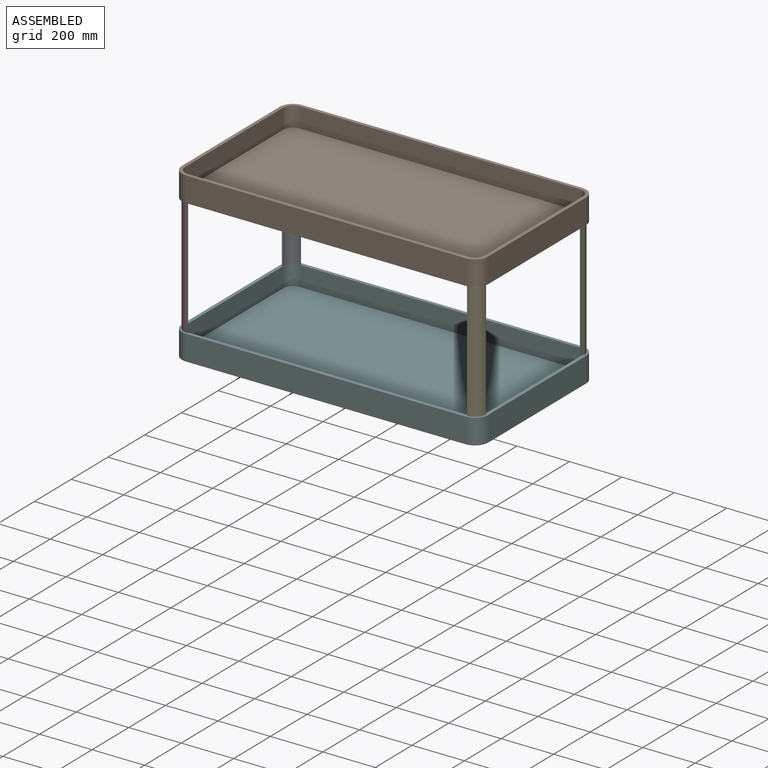
[diagram: assembled view]
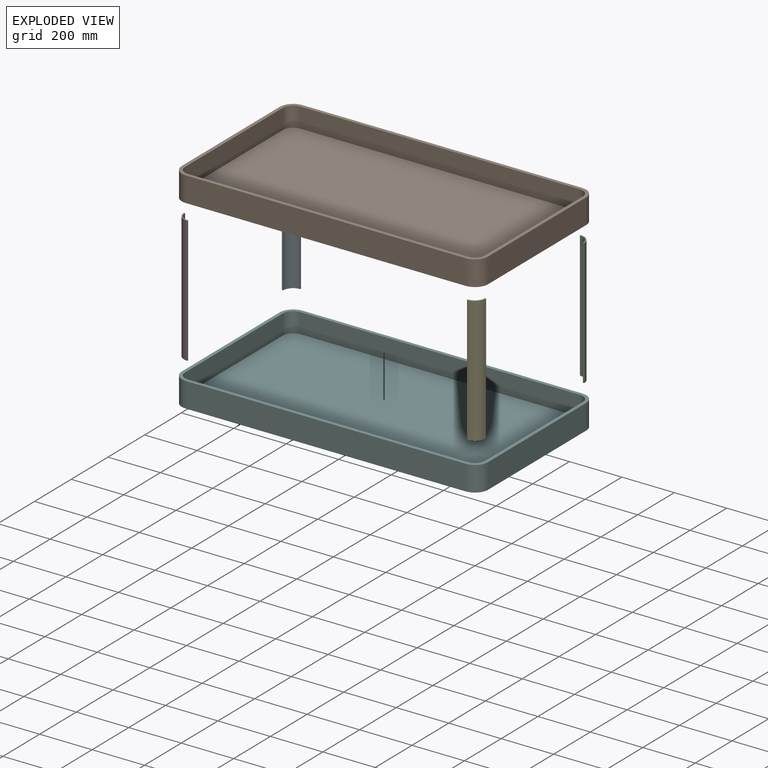
[diagram: exploded view]
GUIDED TOUR — MATED ASSEMBLY (Onshape document f4ed0492253b670b703076cc, AutoMate assembly f4ed0492253b670b703076cc_8603d2fc000435908a895415_7fc6d5df2742171a28bd1c1e_default)

This assembly has 6 components, labeled P0..P5 below (a component is one placed occurrence of a part; the same part can appear more than once), held together by 5 mates. A mate is a constraint between two components; its type names the relative motion it leaves free:
  FASTENED — locks the two components together rigidly (no relative motion).
Axis/direction vectors are unit vectors and 'through' points are millimeter coordinates, both in the assembly's world frame.

MATES
  1. FASTENED "Fastened 5": P2 <-> P1, direction (0.000, 0.000, -1.000) through (433.27, 428.59, 50.15) mm
  2. FASTENED "Fastened 4": P4 <-> P1, direction (0.000, 0.000, -1.000) through (433.27, -104.81, 304.15) mm
  3. FASTENED "Fastened 3": P3 <-> P1, direction (0.000, 0.000, -1.000) through (-633.53, -104.81, 50.15) mm
  4. FASTENED "Fastened 1": P0 <-> P1, direction (0.000, 0.000, -1.000) through (-633.53, 428.59, 304.15) mm
  5. FASTENED "Fastened 2": P5 <-> P0, direction (0.000, 0.000, -1.000) through (-633.53, 428.59, -216.55) mm

ASSEMBLY ORDER
  1. P5 — the base component [order verified]
  2. P1 [order verified]
  3. P4 [order verified]
  4. P0 [order verified]
  5. P3 [order verified]
  6. P2 [order verified]
Order-tag legend:
  [order verified] — this step's position reverses a verified removal order: the component was checked to insert without passing through the ones already placed.

Of the 6 components, 6 carry the full construction recipe — the FeatureScript program that regenerates the part's solid from scratch; the rest are supplied as boundary geometry only.
Each toured component is shown spotlighted twice — in the assembled view, then in the exploded view, where a leader line traces a displaced component back to its assembled socket (saturated green if recipe-attached, orange if geometry-only; every other component desaturated gray) — followed by its recipe or geometry summary and the mates that hold it.
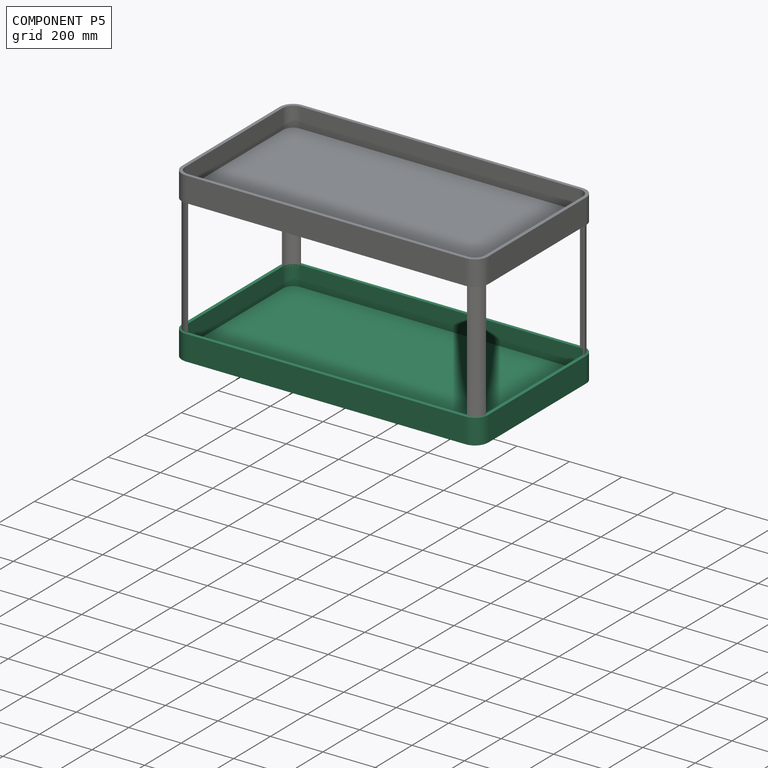
[diagram: component P5 — assembled]
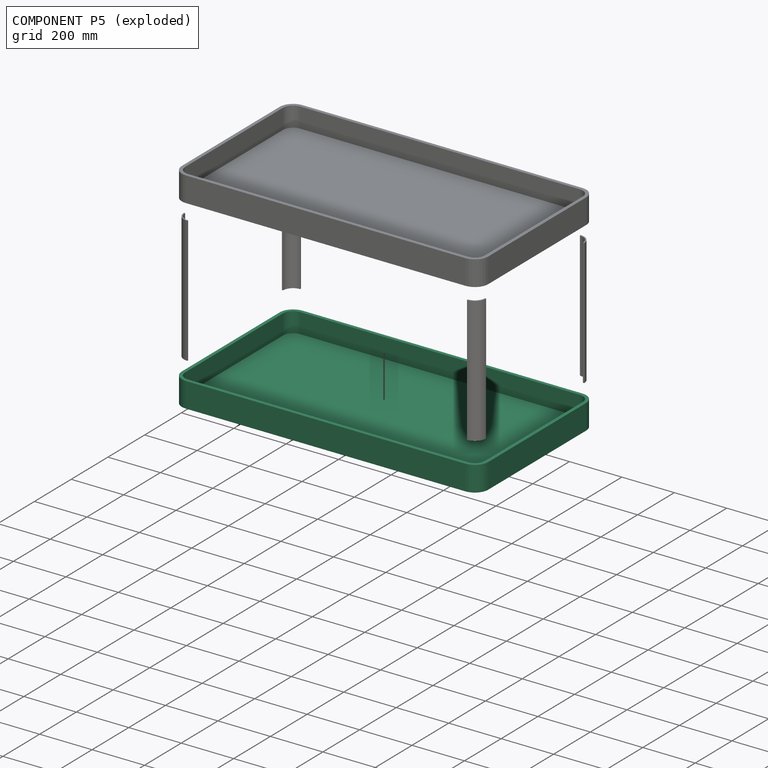
[diagram: component P5 — exploded]
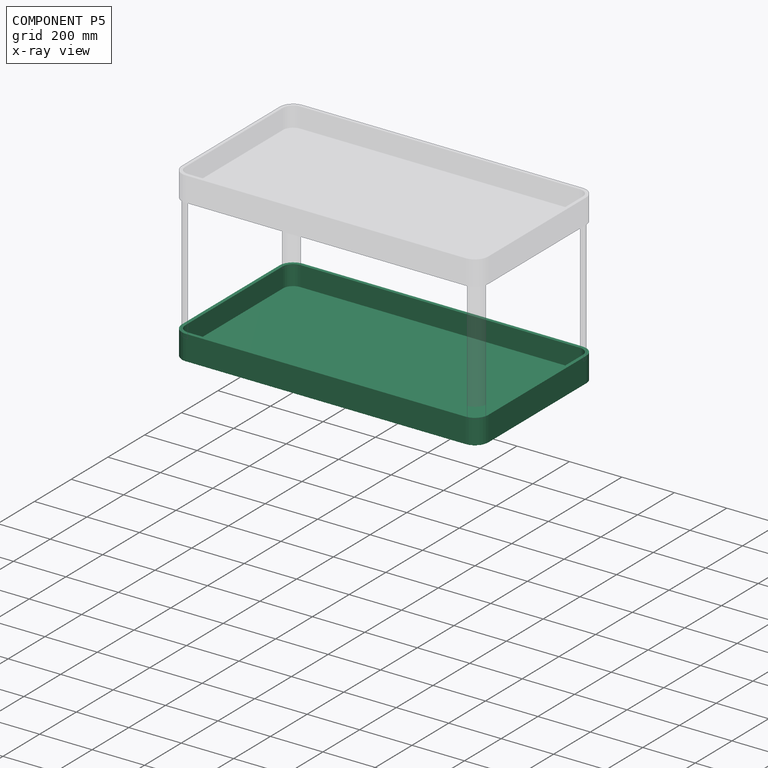
[diagram: component P5 — x-ray view]
COMPONENT P5 — same part as P1 (CADFS 00291228); its construction recipe is shown at P1.
Held by: FASTENED mate "Fastened 2" to P0.
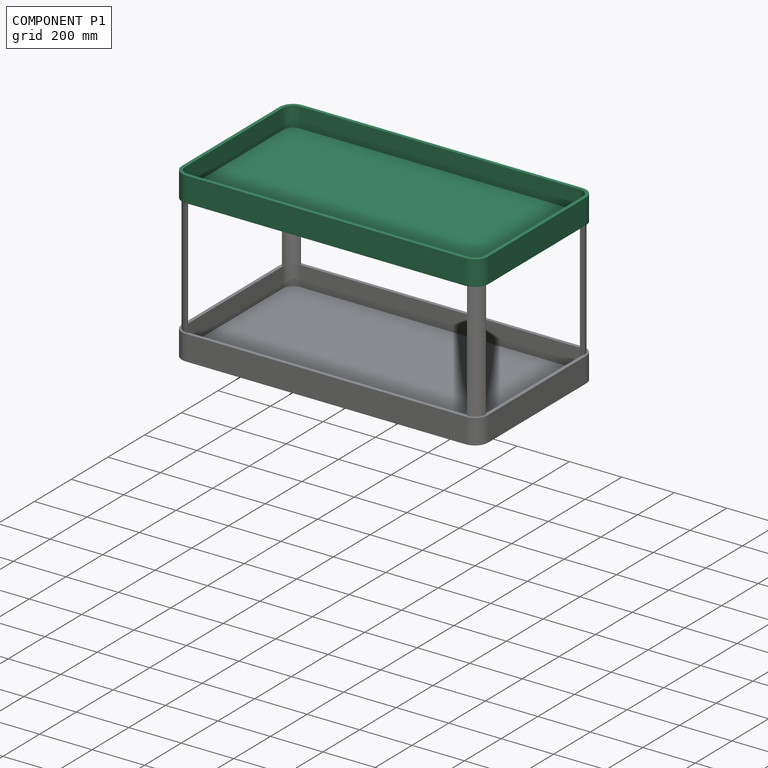
[diagram: component P1 — assembled]
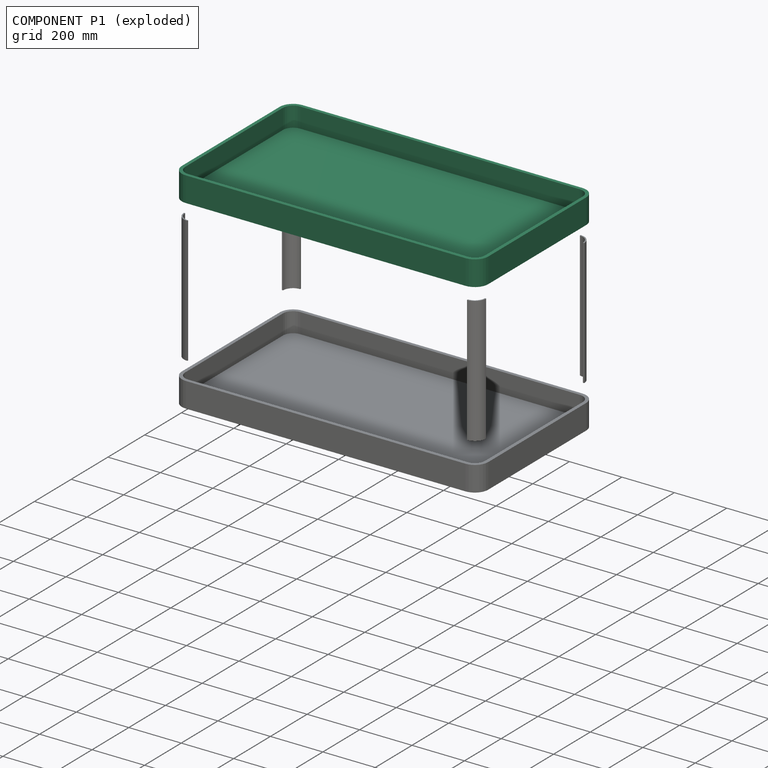
[diagram: component P1 — exploded]
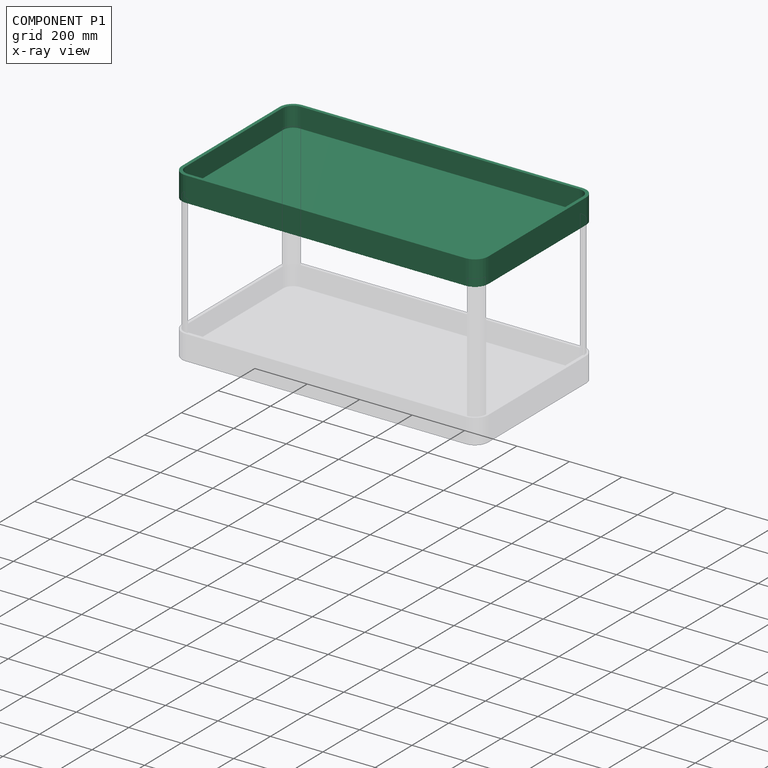
[diagram: component P1 — x-ray view]
COMPONENT P1 — recipe-attached (CADFS 00291228, mesh-verified: the recipe's output STEP matches this component's geometry to below the mesh-comparison resolution (tessellation chordal tolerance ~2 mm)).
Held by: FASTENED mate "Fastened 5" to P2; FASTENED mate "Fastened 4" to P4; FASTENED mate "Fastened 3" to P3; FASTENED mate "Fastened 1" to P0.
Construction recipe (FeatureScript — the CAD program that rebuilds this solid; sketch coordinates are in the units given by the * unit suffixes, e.g. mm):

FeatureScript 1511;
import(path : "onshape/std/geometry.fs", version : "1511.0");
import(path : "onshape/std/common.fs", version : "1511.0");
const mm = millimeter;
const VERTEX = EntityType.VERTEX;
const EDGE = EntityType.EDGE;
const FACE = EntityType.FACE;
const BODY = EntityType.BODY;
function v(x, y){return vector(x, y);}
function OD(order){return orderDisambiguation(order);}
function OSD(set){return originalSetDisambiguation(set);}
function TD(topology){return topologyDisambiguation(topology);}
function TDD(query){return trueDependencyDisambiguation(query);}
function sQuery(a, b, c) {return sketchEntityQuery(a, b, c);}

annotation { "Feature Type Name" : "Feature", "Feature Type Description" : "" }
export const myFeature = defineFeature(function(context is Context, id is Id, definition is map)
    precondition{}
    {
        {
            var Q0;
            Q0=qCreatedBy(makeId("Top.planeOp"),FACE);
            var sketch = newSketch(context, id + "F0", { "sketchPlane" : qUnion([Q0])});
            skLineSegment(sketch, "E0.bottom", {"start": v(-533.4, 317.5) * mm, "end": v(533.4, 317.5) * mm});
            skLineSegment(sketch, "E0.top", {"start": v(-533.4, -317.5) * mm, "end": v(533.4, -317.5) * mm});
            skLineSegment(sketch, "E0.left", {"start": v(-584.2, 266.7) * mm, "end": v(-584.2, -266.7) * mm});
            skLineSegment(sketch, "E0.right", {"start": v(584.2, 266.7) * mm, "end": v(584.2, -266.7) * mm});
            skPoint(sketch, "E1.visualSharp", {"position": v(-584.2, 317.5) * mm});
            skArc(sketch, "E1.filletArc", {"start": v(-533.4, 317.5) * mm, "mid": v(-569.32, 302.62) * mm, "end": v(-584.2, 266.7) * mm});
            skPoint(sketch, "E2.visualSharp", {"position": v(584.2, 317.5) * mm});
            skArc(sketch, "E2.filletArc", {"start": v(584.2, 266.7) * mm, "mid": v(569.32, 302.62) * mm, "end": v(533.4, 317.5) * mm});
            skPoint(sketch, "E3.visualSharp", {"position": v(584.2, -317.5) * mm});
            skArc(sketch, "E3.filletArc", {"start": v(533.4, -317.5) * mm, "mid": v(569.32, -302.62) * mm, "end": v(584.2, -266.7) * mm});
            skPoint(sketch, "E4.visualSharp", {"position": v(-584.2, -317.5) * mm});
            skArc(sketch, "E4.filletArc", {"start": v(-584.2, -266.7) * mm, "mid": v(-569.32, -302.62) * mm, "end": v(-533.4, -317.5) * mm});
            skSolve(sketch);
        }
        {
            var Q0;
            Q0 = qSketchRegion(id + "F0", true);
            extrude(context, id + "F1", {"entities" : qUnion([Q0]), "depth" : 19.05 * mm});
        }
        {
            var Q0;
            Q0=makeQuery(id+"F1.opExtrude","CAP_FACE",FACE,{"disambiguationData":[OSD([sQuery(id+"F0.wireOp",EDGE,"E0.bottom"),sQuery(id+"F0.wireOp",EDGE,"E0.top"),sQuery(id+"F0.wireOp",EDGE,"E0.left"),sQuery(id+"F0.wireOp",EDGE,"E0.right"),sQuery(id+"F0.wireOp",EDGE,"E1.filletArc"),sQuery(id+"F0.wireOp",EDGE,"E2.filletArc"),sQuery(id+"F0.wireOp",EDGE,"E3.filletArc"),sQuery(id+"F0.wireOp",EDGE,"E4.filletArc")])],"isStart":false});
            var sketch = newSketch(context, id + "F2", { "sketchPlane" : qUnion([Q0])});
            skLineSegment(sketch, "E5.0", {"start": v(-571.5, 266.7) * mm, "end": v(-571.5, -266.7) * mm});
            skLineSegment(sketch, "E5.1", {"start": v(-533.4, 304.8) * mm, "end": v(533.4, 304.8) * mm});
            skLineSegment(sketch, "E5.2", {"start": v(571.5, 266.7) * mm, "end": v(571.5, -266.7) * mm});
            skLineSegment(sketch, "E5.3", {"start": v(-533.4, -304.8) * mm, "end": v(533.4, -304.8) * mm});
            skLineSegment(sketch, "E6.0", {"start": v(-590.55, 266.7) * mm, "end": v(-590.55, -266.7) * mm});
            skArc(sketch, "E6.1", {"start": v(-533.4, 323.85) * mm, "mid": v(-573.81, 307.11) * mm, "end": v(-590.55, 266.7) * mm});
            skArc(sketch, "E6.2", {"start": v(-590.55, -266.7) * mm, "mid": v(-573.81, -307.11) * mm, "end": v(-533.4, -323.85) * mm});
            skLineSegment(sketch, "E6.3", {"start": v(533.4, 323.85) * mm, "end": v(-533.4, 323.85) * mm});
            skLineSegment(sketch, "E6.4", {"start": v(-533.4, -323.85) * mm, "end": v(533.4, -323.85) * mm});
            skArc(sketch, "E6.5", {"start": v(533.4, -323.85) * mm, "mid": v(573.81, -307.11) * mm, "end": v(590.55, -266.7) * mm});
            skLineSegment(sketch, "E6.6", {"start": v(590.55, -266.7) * mm, "end": v(590.55, 266.7) * mm});
            skArc(sketch, "E6.7", {"start": v(590.55, 266.7) * mm, "mid": v(573.81, 307.11) * mm, "end": v(533.4, 323.85) * mm});
            skPoint(sketch, "E7.visualSharp", {"position": v(-571.5, 304.8) * mm});
            skArc(sketch, "E7.filletArc", {"start": v(-533.4, 304.8) * mm, "mid": v(-560.34, 293.64) * mm, "end": v(-571.5, 266.7) * mm});
            skPoint(sketch, "E8.visualSharp", {"position": v(571.5, 304.8) * mm});
            skArc(sketch, "E8.filletArc", {"start": v(571.5, 266.7) * mm, "mid": v(560.34, 293.64) * mm, "end": v(533.4, 304.8) * mm});
            skPoint(sketch, "E9.visualSharp", {"position": v(571.5, -304.8) * mm});
            skArc(sketch, "E9.filletArc", {"start": v(533.4, -304.8) * mm, "mid": v(560.34, -293.64) * mm, "end": v(571.5, -266.7) * mm});
            skPoint(sketch, "E10.visualSharp", {"position": v(-571.5, -304.8) * mm});
            skArc(sketch, "E10.filletArc", {"start": v(-571.5, -266.7) * mm, "mid": v(-560.34, -293.64) * mm, "end": v(-533.4, -304.8) * mm});
            skSolve(sketch);
        }
        {
            var Q0;
            Q0=makeQuery(id+"F2.imprint","IMPRINT",FACE,{"disambiguationData":[TD([[makeQuery(id+"F2.imprint","IMPRINT",EDGE,{"derivedFrom":sQuery(id+"F2.wireOp",EDGE,"xitZLcKN-yIl8-IpYT-J6Ye-wkeivL7j65dY.bottom")}),1.0]])]});
            var Q1;
            Q1=makeQuery(id+"F2.imprint","IMPRINT",FACE,{"disambiguationData":[TD([[makeQuery(id+"F2.imprint","IMPRINT",EDGE,{"derivedFrom":sQuery(id+"F2.wireOp",EDGE,"E5.0")}),-1.0]])]});
            extrude(context, id + "F3", {"entities" : qUnion([Q0, Q1]), "operationType" : NewBodyOperationType.ADD, "depth" : 76.2 * mm});
        }
    });
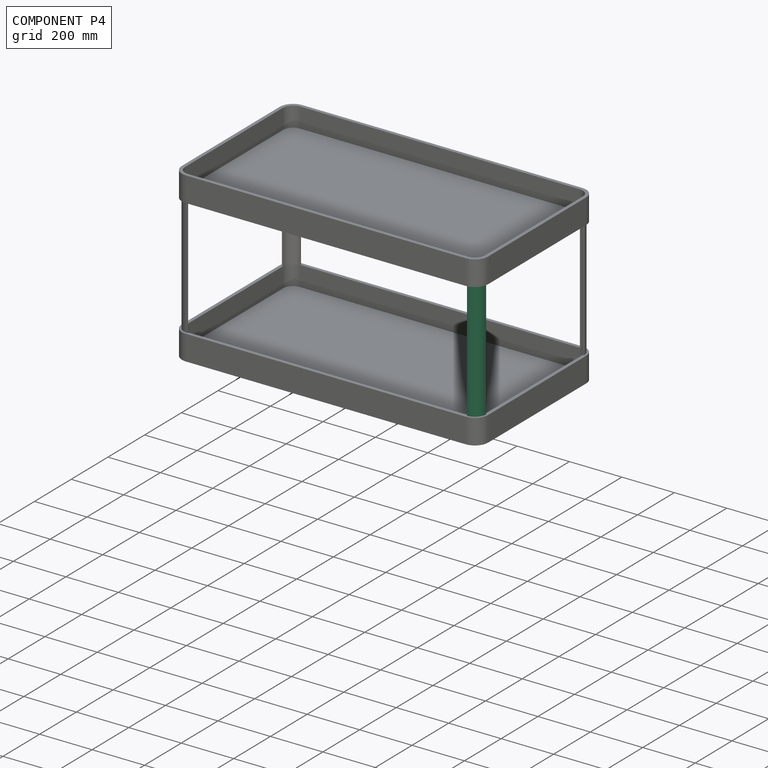
[diagram: component P4 — assembled]
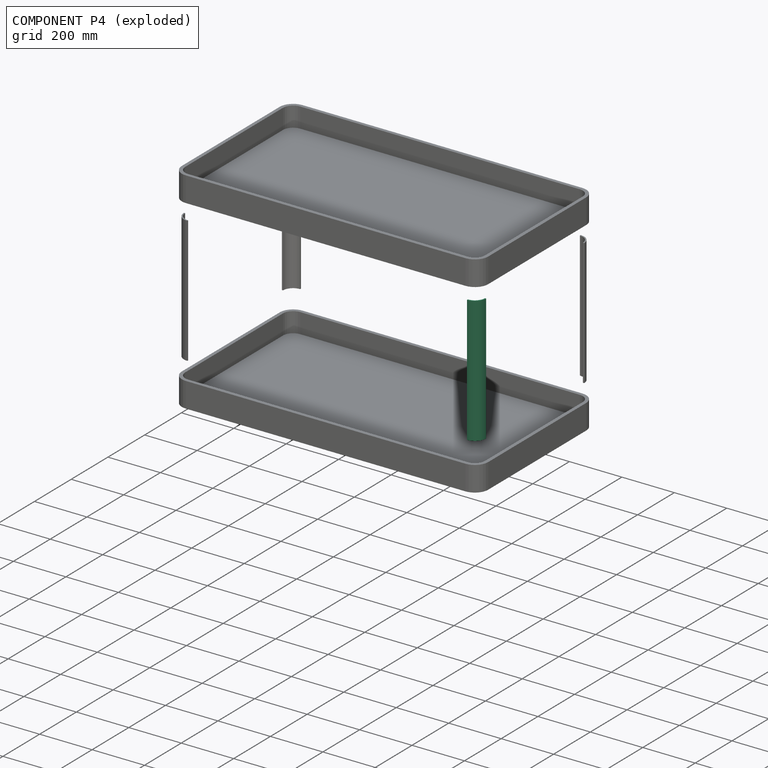
[diagram: component P4 — exploded]
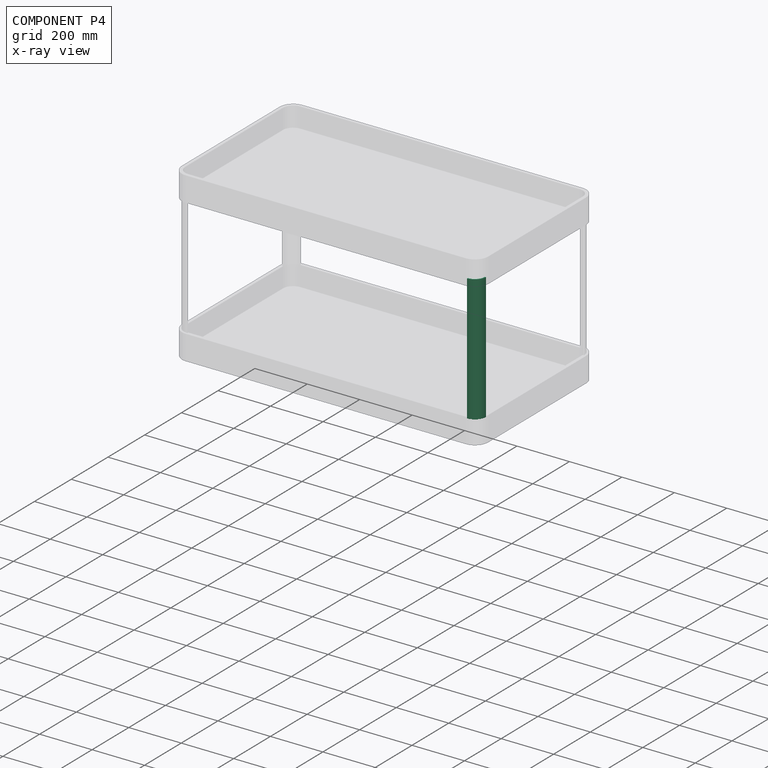
[diagram: component P4 — x-ray view]
COMPONENT P4 — same part as P0 (CADFS 00291230); its construction recipe is shown at P0.
Held by: FASTENED mate "Fastened 4" to P1.
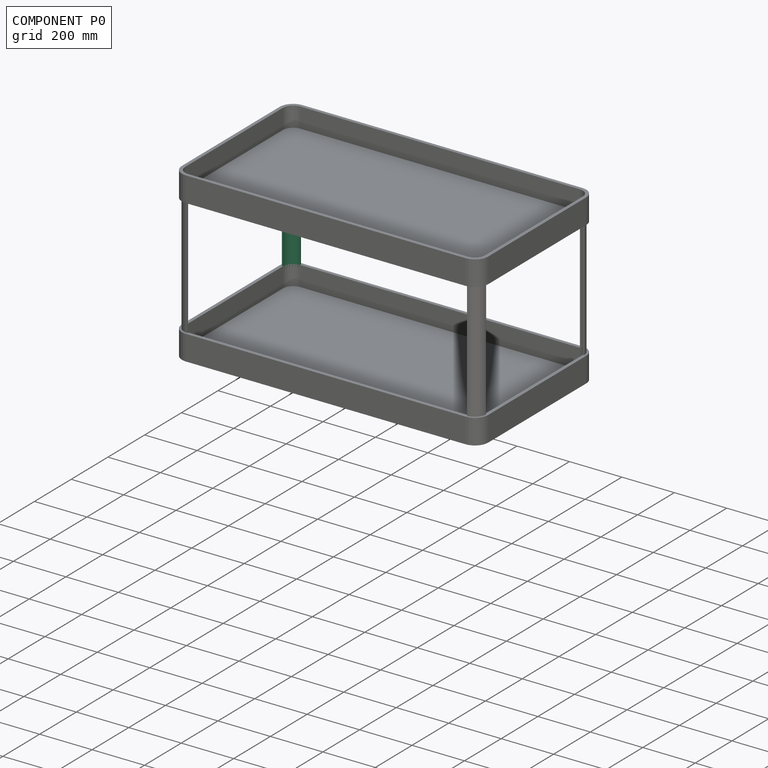
[diagram: component P0 — assembled]
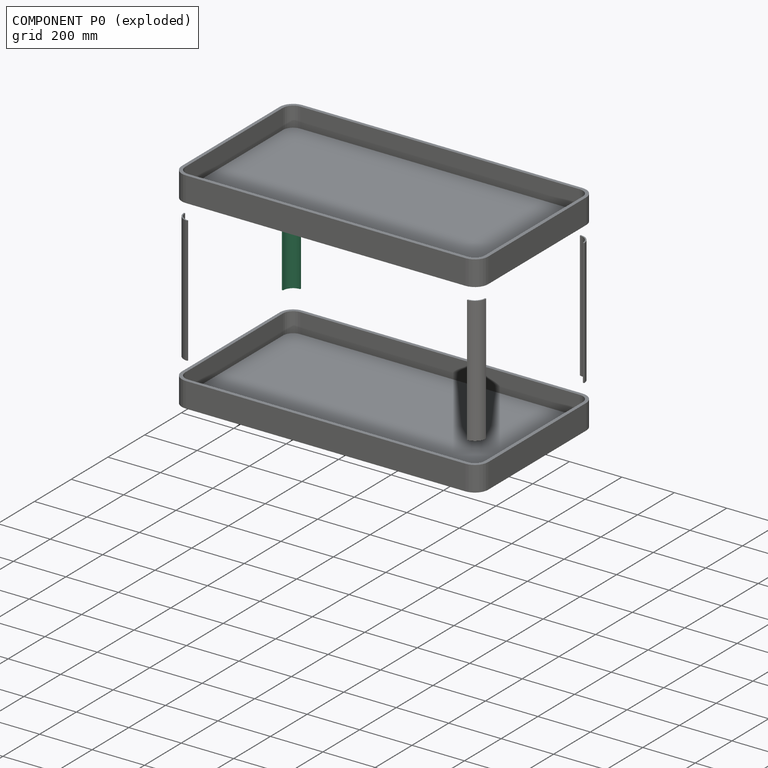
[diagram: component P0 — exploded]
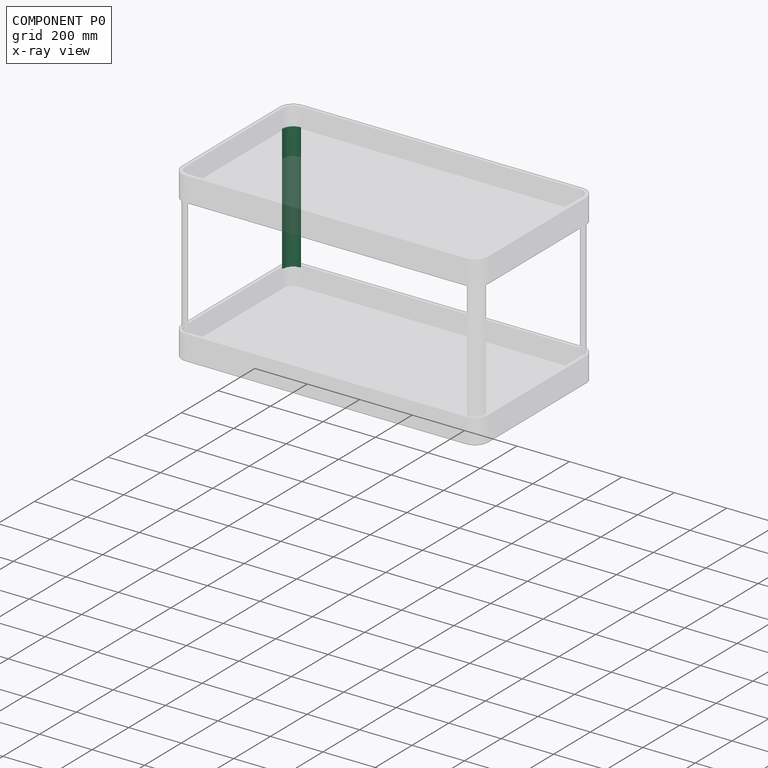
[diagram: component P0 — x-ray view]
COMPONENT P0 — recipe-attached (CADFS 00291230, mesh-verified: the recipe's output STEP matches this component's geometry to below the mesh-comparison resolution (tessellation chordal tolerance ~0.73 mm)).
Held by: FASTENED mate "Fastened 1" to P1; FASTENED mate "Fastened 2" to P5.
Construction recipe (FeatureScript — the CAD program that rebuilds this solid; sketch coordinates are in the units given by the * unit suffixes, e.g. mm):

FeatureScript 1511;
import(path : "onshape/std/geometry.fs", version : "1511.0");
import(path : "onshape/std/common.fs", version : "1511.0");
const mm = millimeter;
const VERTEX = EntityType.VERTEX;
const EDGE = EntityType.EDGE;
const FACE = EntityType.FACE;
const BODY = EntityType.BODY;
function v(x, y){return vector(x, y);}
function OD(order){return orderDisambiguation(order);}
function OSD(set){return originalSetDisambiguation(set);}
function TD(topology){return topologyDisambiguation(topology);}
function TDD(query){return trueDependencyDisambiguation(query);}
function sQuery(a, b, c) {return sketchEntityQuery(a, b, c);}

annotation { "Feature Type Name" : "Feature", "Feature Type Description" : "" }
export const myFeature = defineFeature(function(context is Context, id is Id, definition is map)
    precondition{}
    {
        {
            var Q0;
            Q0=qCreatedBy(makeId("Top.planeOp"),FACE);
            var sketch = newSketch(context, id + "F0", { "sketchPlane" : qUnion([Q0])});
            skArc(sketch, "E0", {"start": v(0, 38.1) * mm, "mid": v(-26.94, 26.94) * mm, "end": v(-38.1, 0) * mm});
            skArc(sketch, "E1", {"start": v(0, 42.86) * mm, "mid": v(-30.3, 30.3) * mm, "end": v(-42.86, 0) * mm});
            skLineSegment(sketch, "E2", {"start": v(-42.86, 0) * mm, "end": v(-38.1, 0) * mm});
            skLineSegment(sketch, "E3", {"start": v(0, 42.86) * mm, "end": v(0, 38.1) * mm});
            skPoint(sketch, "E4.orphan", {"position": v(-69.94, 0) * mm});
            skPoint(sketch, "E5.orphan", {"position": v(0, 55.55) * mm});
            skSolve(sketch);
        }
        {
            var Q0;
            Q0=makeQuery(id+"F0.imprint","IMPRINT",FACE,{"disambiguationData":[TD([[makeQuery(id+"F0.imprint","IMPRINT",EDGE,{"derivedFrom":sQuery(id+"F0.wireOp",EDGE,"E0")}),-1.0]])]});
            extrude(context, id + "F1", {"entities" : qUnion([Q0]), "depth" : 482.6 * mm});
        }
    });
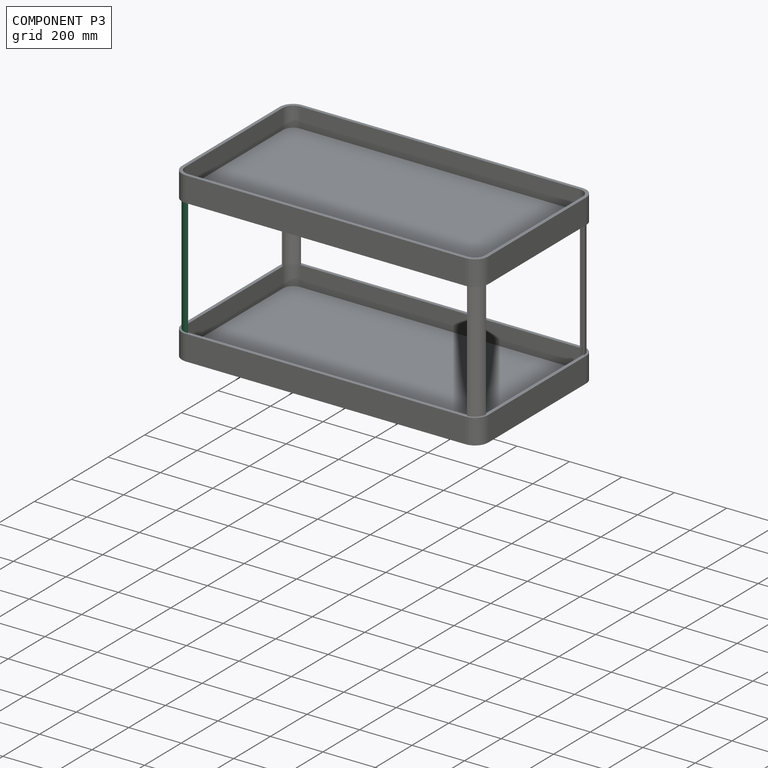
[diagram: component P3 — assembled]
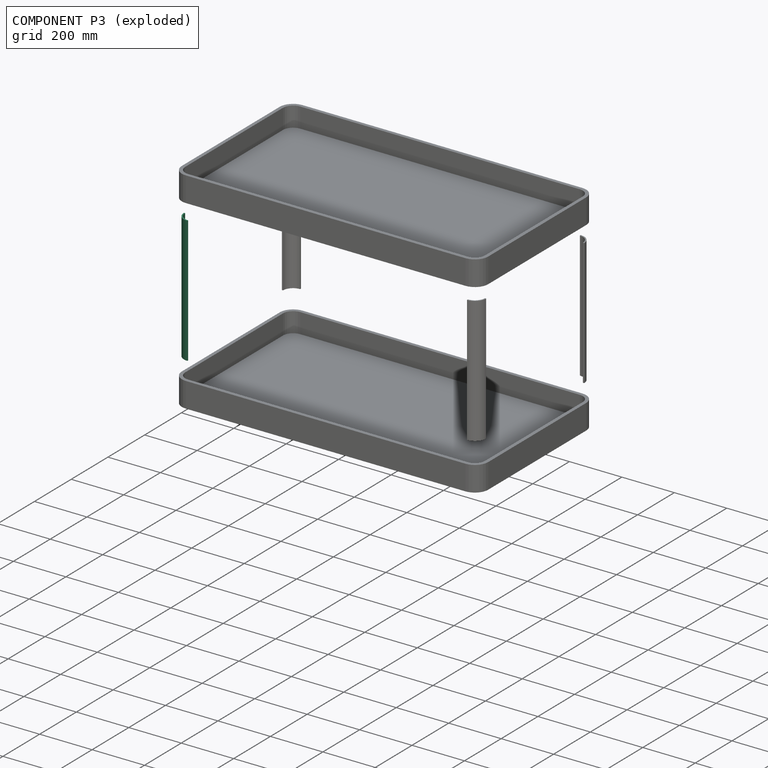
[diagram: component P3 — exploded]
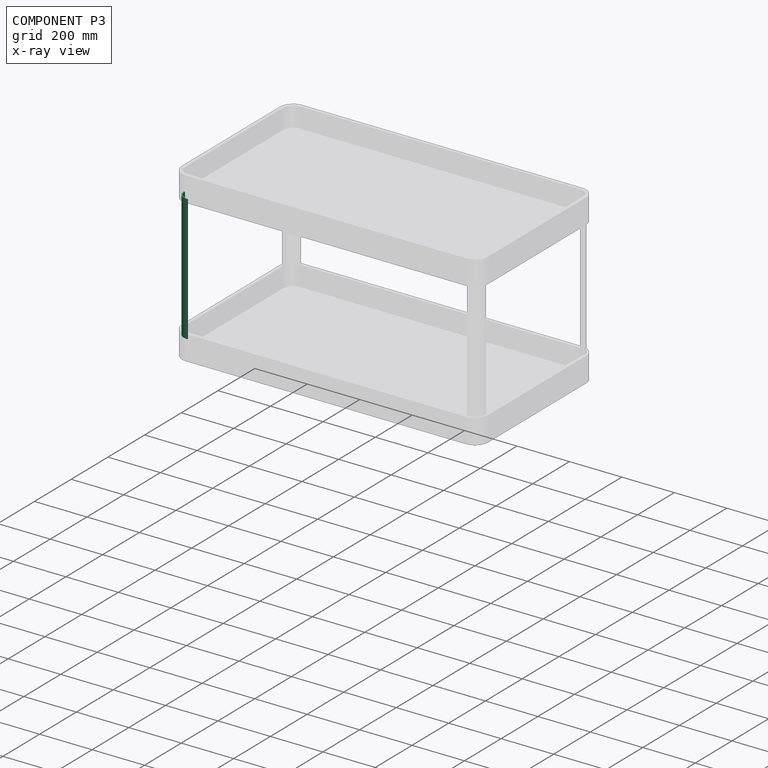
[diagram: component P3 — x-ray view]
COMPONENT P3 — same part as P0 (CADFS 00291230); its construction recipe is shown at P0.
Held by: FASTENED mate "Fastened 3" to P1.
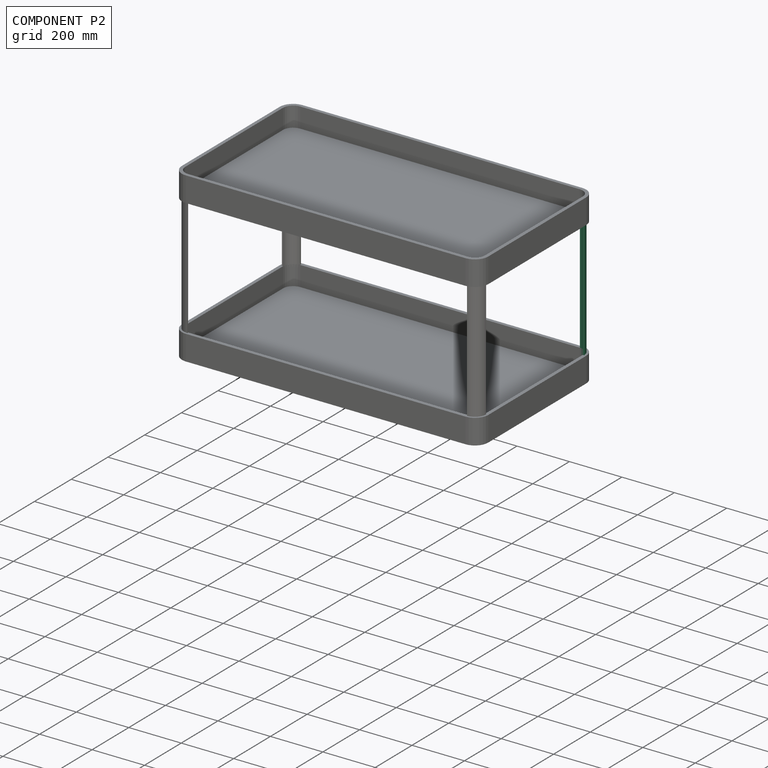
[diagram: component P2 — assembled]
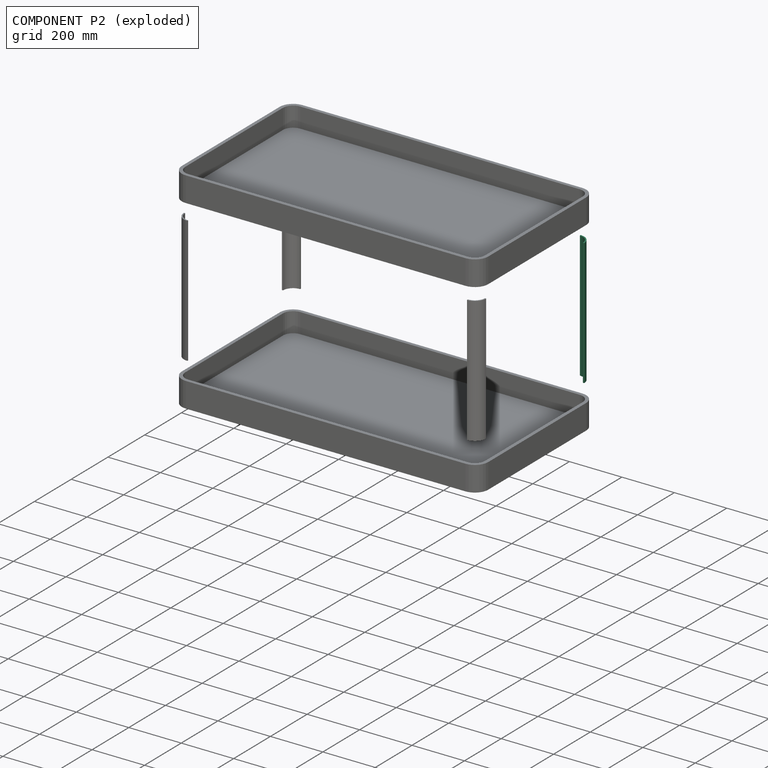
[diagram: component P2 — exploded]
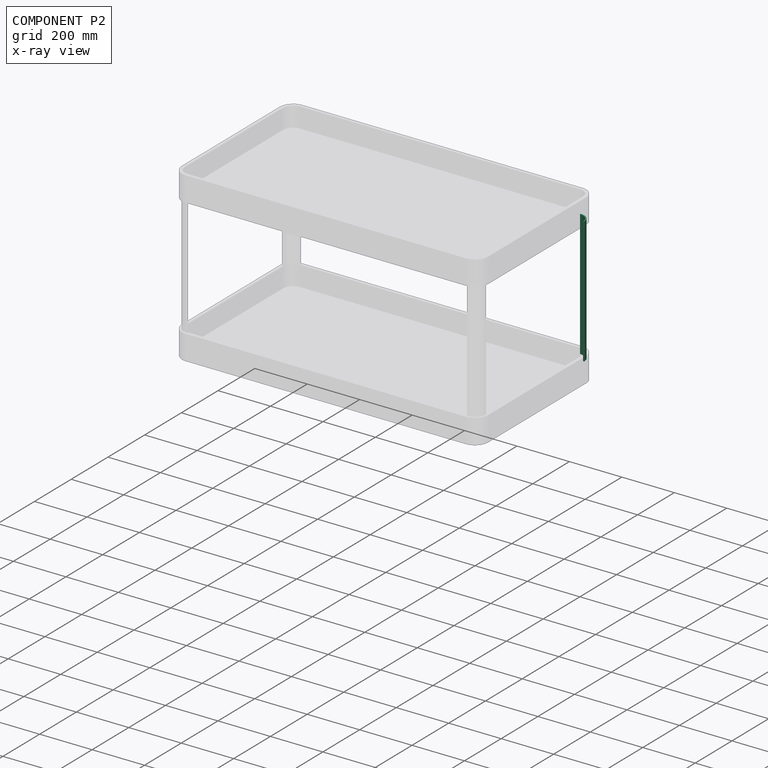
[diagram: component P2 — x-ray view]
COMPONENT P2 — same part as P0 (CADFS 00291230); its construction recipe is shown at P0.
Held by: FASTENED mate "Fastened 5" to P1.
PROVENANCE & LICENSES
Assembly (occurrences, transforms, mates, per-part STEP geometry): AutoMate dataset, Zenodo record 7776208, CC0.
Construction recipes: CADFS (HuggingFace VladPyatov/CADFS, CC-BY-4.0, layered over the ABC dataset), FeatureScript reconstruction programs keyed by ABC model id.
Join: ABC meta listings map ABC model id -> Onshape documentId; within a shared document, parts are matched by geometric signature (bounding-box dims + volume at 0.1% relative tolerance, exact B-rep face/solid counts).
Verification: 6 of this assembly's 6 components carry a recipe attachment, and every attachment is mesh-verified: the CADFS STEP and the AutoMate member STEP were compared as meshes in their shared local frame (symmetric sampled-point-to-mesh distance); worst across the 6 attachments: below the mesh-comparison resolution (tessellation chordal tolerance ~2 mm) on a 1333 mm part.
Renders: orthographic iso camera (az 35 / el 25); the floor grid conveys scale (grid pitch printed in each image; no ruler). In the exploded view each component is displaced by its stored offset vector: the offsets alone carry the explosion direction (mate normal/axis signs are not orientation cues and do not encode it), and separation distances are assigned per mate-chain, not proportionally to assembly-order depth.
